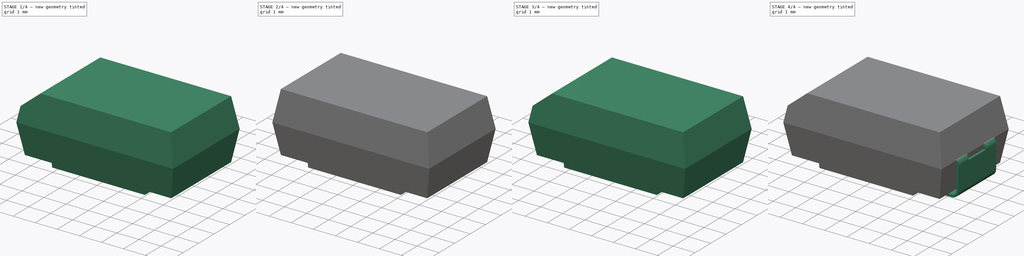
[diagram: build sequence overview — one tinted view per stage of 4, left to right]
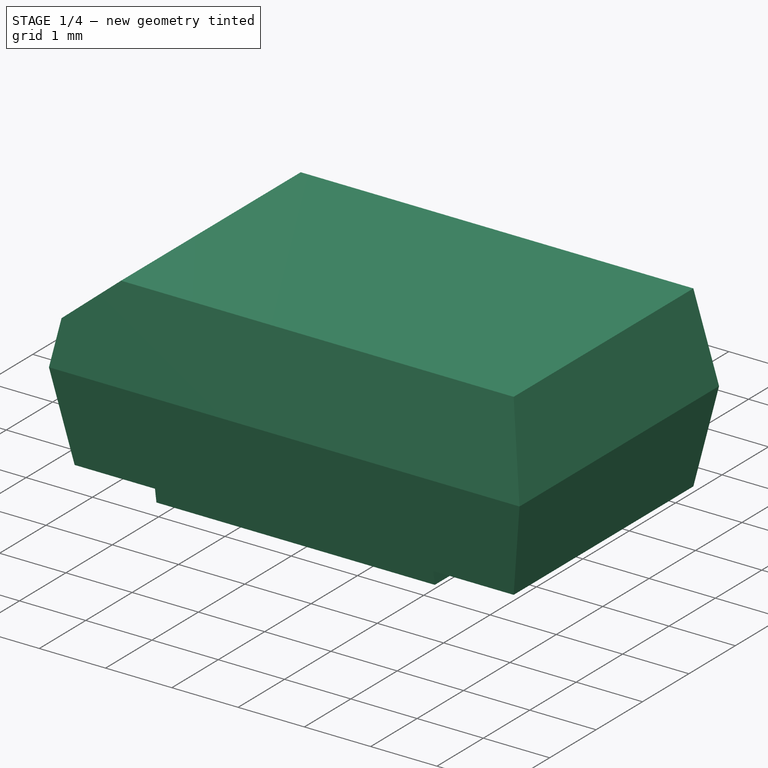
[diagram: stage 1 of 4 — iso view after this stage's code; geometry added in this stage tinted green]
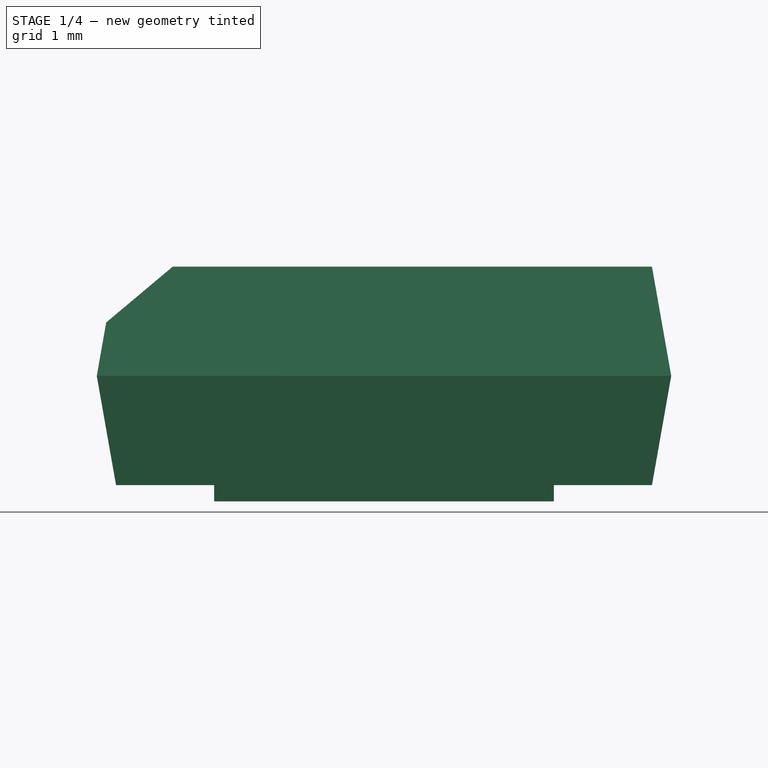
[diagram: stage 1 of 4 — front view after this stage's code; geometry added in this stage tinted green]
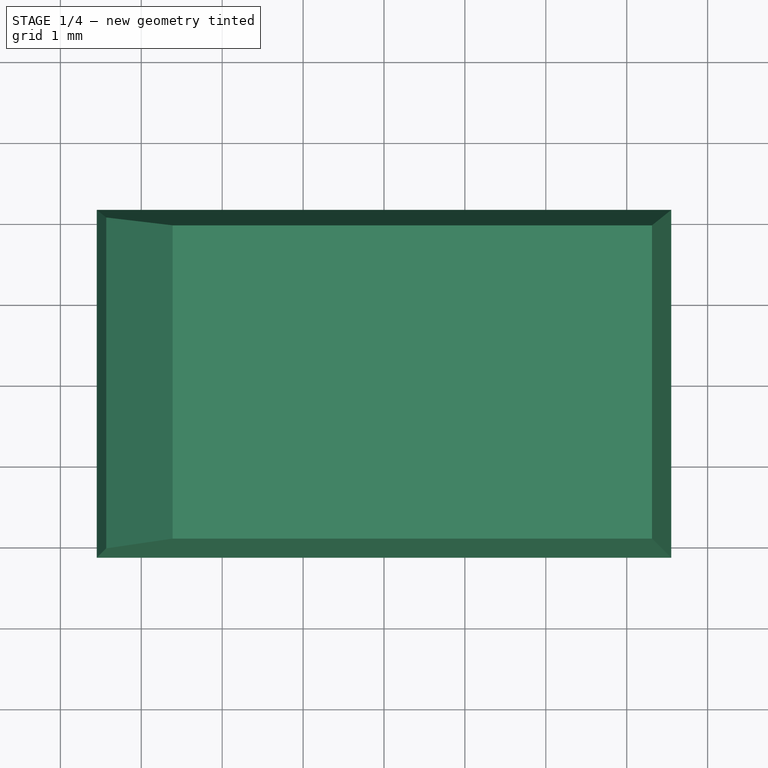
[diagram: stage 1 of 4 — top view after this stage's code; geometry added in this stage tinted green]
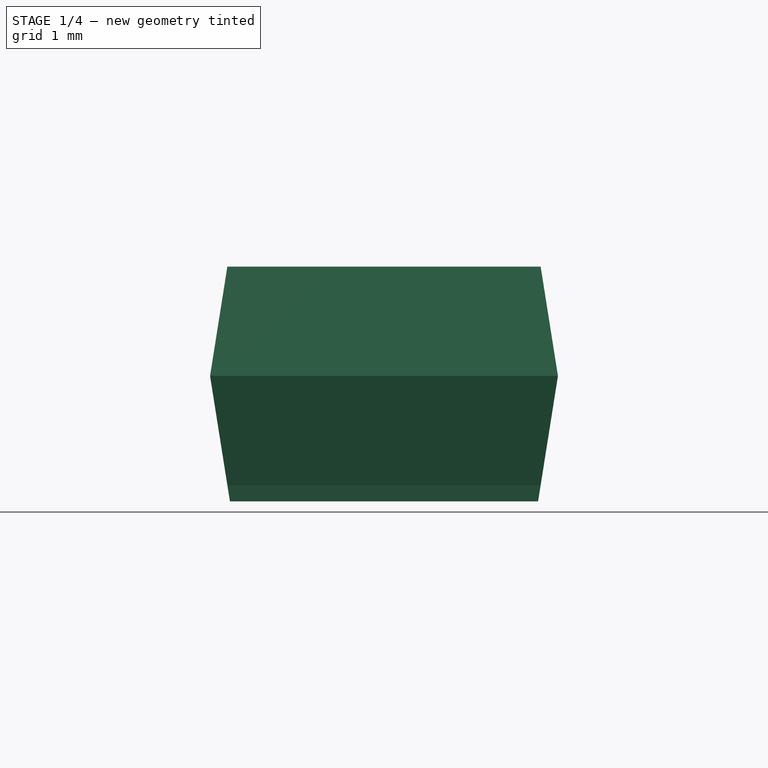
[diagram: stage 1 of 4 — right view after this stage's code; geometry added in this stage tinted green]
FCSTD DOCUMENT  (FreeCAD 0.16R6698 (Git))
Label: Condensador_Tantalio_SizeD
License: All rights reserved
LicenseURL: http://en.wikipedia.org/wiki/All_rights_reserved
objects: Sketcher::SketchObject×13, PartDesign::Pocket×6, PartDesign::Pad×3, App::DocumentObjectGroup×3, Part::Feature×3, Part::Sweep×2, PartDesign::Chamfer×2, Part::Cut×1
note: 39 computed .brp shape members not serialized (recipe doc carries the construction recipe); baked Part::Feature solids carry a one-line shape summary decoded from their .brp

FEATURE [Sketcher::SketchObject] Sketch011
  Placement = pos=(0,0,0) rot=(1,0,0;1.5708rad)
  sketch-geometry (10):
    g0: LineSegment StartX=-3.31196 StartY=2.9 StartZ=0 EndX=3.31196 EndY=2.9 EndZ=0
    g1: LineSegment StartX=3.31196 StartY=2.9 StartZ=0 EndX=3.55 EndY=1.55 EndZ=0
    g2: LineSegment StartX=3.55 StartY=1.55 StartZ=0 EndX=3.31196 EndY=0.2 EndZ=0
    g3: LineSegment StartX=3.31196 StartY=0.2 StartZ=0 EndX=2.1 EndY=0.2 EndZ=0
    g4: LineSegment StartX=2.1 StartY=0.2 StartZ=0 EndX=2.1 EndY=0 EndZ=0
    g5: LineSegment StartX=2.1 StartY=0 StartZ=0 EndX=-2.1 EndY=0 EndZ=0
    g6: LineSegment StartX=-2.1 StartY=0 StartZ=0 EndX=-2.1 EndY=0.2 EndZ=0
    g7: LineSegment StartX=-2.1 StartY=0.2 StartZ=0 EndX=-3.31196 EndY=0.2 EndZ=0
    g8: LineSegment StartX=-3.31196 StartY=0.2 StartZ=0 EndX=-3.55 EndY=1.55 EndZ=0
    g9: LineSegment StartX=-3.55 StartY=1.55 StartZ=0 EndX=-3.31196 EndY=2.9 EndZ=0
  constraints (25):
    c: Coincident(g0,g1)
    c: Coincident(g1,g2)
    c: Coincident(g2,g3)
    c: Coincident(g3,g4)
    c: Coincident(g4,g5)
    c: Coincident(g5,g6)
    c: Coincident(g6,g7)
    c: Coincident(g7,g8)
    c: Coincident(g8,g9)
    c: Coincident(g9,g0)
    c: Symmetric(g0,g0,g-2)
    c: Symmetric(g1,g8,g-2)
    c: Symmetric(g7,g2,g-2)
    c: Symmetric(g6,g3,g-2)
    c: Symmetric(g5,g4,g-2)
    c: Vertical(g6)
    c: Angle(g1,g-2) = 2.96706
    c: Angle(g8,g9) = 2.79253
    c: PointOnObject(g5,g-1)
    c: Horizontal(g7)
    c: DistanceX(g5,g5) = 4.2
    c: DistanceX(g8,g1) = 7.1
    c: DistanceY(g0) = 2.9
    c: DistanceY(g4,g4) = 0.2
    c: Equal(g9,g8)
FEATURE [PartDesign::Pad] Pad002
  Length = 4.3
  Length2 = 100
  Midplane = true
  Placement = pos=(0,0,0) rot=(1,0,0;1.5708rad)
  Sketch = -> Sketch011
  Type = 0
FEATURE [Sketcher::SketchObject] Sketch012
  Placement = pos=(2.1,0,0) rot=(0.707107,0,0.707107;3.14159rad)
  Support = -> Pad002 [Face5]
  sketch-geometry (6):
    g0: LineSegment StartX=2.92209 StartY=2.22985 StartZ=0 EndX=3.3067 EndY=1.87177 EndZ=0
    g1: LineSegment StartX=3.3067 StartY=1.87177 StartZ=0 EndX=1.04584 EndY=2.22985 EndZ=0
    g2: LineSegment StartX=1.04584 StartY=2.22985 StartZ=0 EndX=2.92209 EndY=2.22985 EndZ=0
    g3: LineSegment StartX=3.3067 StartY=-1.87177 StartZ=0 EndX=2.92209 EndY=-2.22985 EndZ=0
    g4: LineSegment StartX=2.92209 StartY=-2.22985 StartZ=0 EndX=1.04584 EndY=-2.22985 EndZ=0
    g5: LineSegment StartX=1.04584 StartY=-2.22985 StartZ=0 EndX=3.3067 EndY=-1.87177 EndZ=0
  constraints (11):
    c: Coincident(g0,g1)
    c: Coincident(g1,g2)
    c: Coincident(g2,g0)
    c: Coincident(g3,g4)
    c: Coincident(g4,g5)
    c: Coincident(g5,g3)
    c: Symmetric(g1,g4,g-1)
    c: Symmetric(g0,g3,g-1)
    c: Symmetric(g0,g3,g-1)
    c: Horizontal(g2)
    c: Angle(g1,g2) = 0.15708
FEATURE [PartDesign::Pocket] Pocket004
  Length = 20
  Midplane = true
  Placement = pos=(0,0,0) rot=(1,0,0;1.5708rad)
  Sketch = -> Sketch012
  Type = 0
FEATURE [Sketcher::SketchObject] Sketch013
  Placement = pos=(2.1,0,0) rot=(0.707107,0,0.707107;3.14159rad)
  Support = -> Pocket004 [Face11]
  sketch-geometry (6):
    g0: LineSegment StartX=2.19375 StartY=2.25196 StartZ=0 EndX=-0.47761 EndY=2.25196 EndZ=0
    g1: LineSegment StartX=-0.47761 StartY=2.25196 StartZ=0 EndX=-0.609797 EndY=1.80792 EndZ=0
    g2: LineSegment StartX=-0.609797 StartY=1.80792 StartZ=0 EndX=2.19375 EndY=2.25196 EndZ=0
    g3: LineSegment StartX=2.19375 StartY=-2.25196 StartZ=0 EndX=-0.47761 EndY=-2.25196 EndZ=0
    g4: LineSegment StartX=-0.47761 StartY=-2.25196 StartZ=0 EndX=-0.609797 EndY=-1.80792 EndZ=0
    g5: LineSegment StartX=-0.609797 StartY=-1.80792 StartZ=0 EndX=2.19375 EndY=-2.25196 EndZ=0
  constraints (11):
    c: Coincident(g0,g1)
    c: Coincident(g1,g2)
    c: Coincident(g2,g0)
    c: Coincident(g3,g4)
    c: Coincident(g4,g5)
    c: Coincident(g5,g3)
    c: Symmetric(g0,g3,g-1)
    c: Symmetric(g1,g4,g-1)
    c: Symmetric(g0,g3,g-1)
    c: Horizontal(g0)
    c: Angle(g0,g2) = 0.15708
FEATURE [PartDesign::Pocket] Pocket005
  Length = 25
  Midplane = true
  Placement = pos=(0,0,0) rot=(1,0,0;1.5708rad)
  Sketch = -> Sketch013
  Type = 0
FEATURE [PartDesign::Chamfer] Chamfer001
  Base = -> Pocket005 [Edge4]
  Placement = pos=(0,0,0) rot=(1,0,0;1.5708rad)
  Size = 0.7
FEATURE [App::DocumentObjectGroup] Grupo  label="paquete"
  Group = -> [Pad,Pocket,Pocket001,Cut,Pad002,Chamfer001,Pocket004,Pocket005]
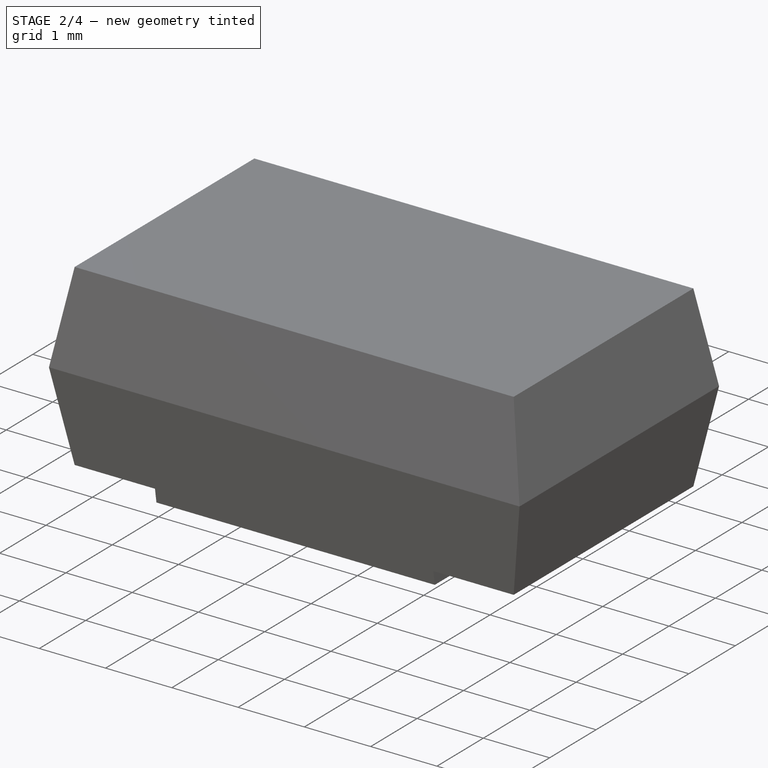
[diagram: stage 2 of 4 — iso view after this stage's code; geometry added in this stage tinted green]
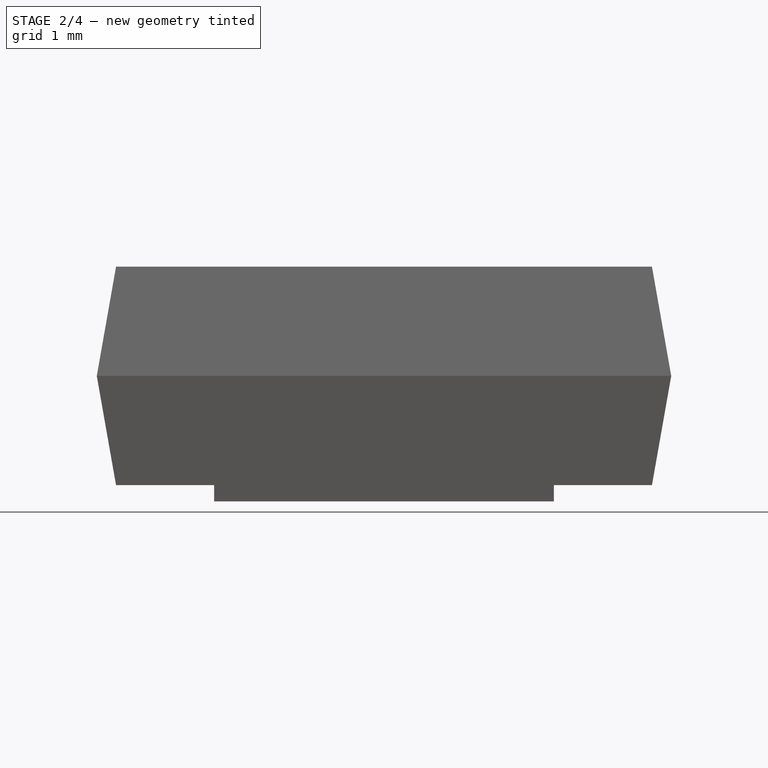
[diagram: stage 2 of 4 — front view after this stage's code; geometry added in this stage tinted green]
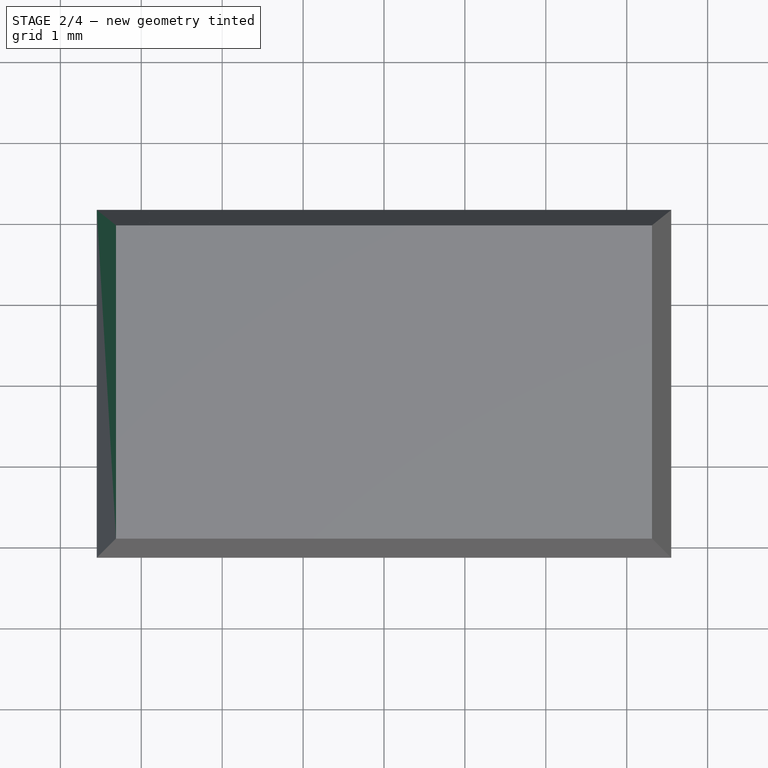
[diagram: stage 2 of 4 — top view after this stage's code; geometry added in this stage tinted green]
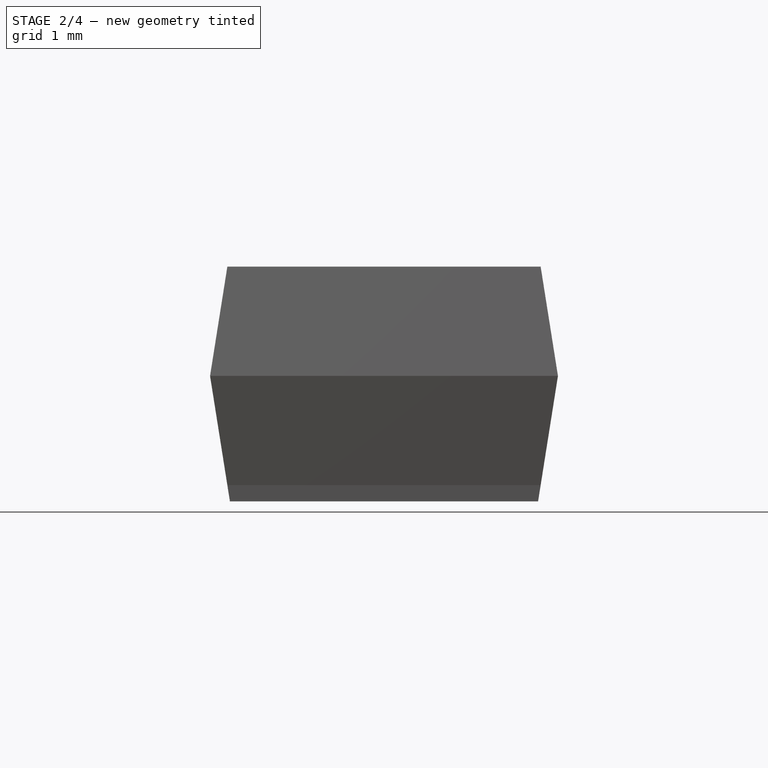
[diagram: stage 2 of 4 — right view after this stage's code; geometry added in this stage tinted green]
FEATURE [Sketcher::SketchObject] Sketch
  Placement = pos=(0,0,0) rot=(1,0,0;1.5708rad)
  sketch-geometry (10):
    g0: LineSegment StartX=-3.31196 StartY=2.9 StartZ=0 EndX=3.31196 EndY=2.9 EndZ=0
    g1: LineSegment StartX=3.31196 StartY=2.9 StartZ=0 EndX=3.55 EndY=1.55 EndZ=0
    g2: LineSegment StartX=3.55 StartY=1.55 StartZ=0 EndX=3.31196 EndY=0.2 EndZ=0
    g3: LineSegment StartX=3.31196 StartY=0.2 StartZ=0 EndX=2.1 EndY=0.2 EndZ=0
    g4: LineSegment StartX=2.1 StartY=0.2 StartZ=0 EndX=2.1 EndY=0 EndZ=0
    g5: LineSegment StartX=2.1 StartY=0 StartZ=0 EndX=-2.1 EndY=0 EndZ=0
    g6: LineSegment StartX=-2.1 StartY=0 StartZ=0 EndX=-2.1 EndY=0.2 EndZ=0
    g7: LineSegment StartX=-2.1 StartY=0.2 StartZ=0 EndX=-3.31196 EndY=0.2 EndZ=0
    g8: LineSegment StartX=-3.31196 StartY=0.2 StartZ=0 EndX=-3.55 EndY=1.55 EndZ=0
    g9: LineSegment StartX=-3.55 StartY=1.55 StartZ=0 EndX=-3.31196 EndY=2.9 EndZ=0
  constraints (25):
    c: Coincident(g0,g1)
    c: Coincident(g1,g2)
    c: Coincident(g2,g3)
    c: Coincident(g3,g4)
    c: Coincident(g4,g5)
    c: Coincident(g5,g6)
    c: Coincident(g6,g7)
    c: Coincident(g7,g8)
    c: Coincident(g8,g9)
    c: Coincident(g9,g0)
    c: Symmetric(g0,g0,g-2)
    c: Symmetric(g1,g8,g-2)
    c: Symmetric(g7,g2,g-2)
    c: Symmetric(g6,g3,g-2)
    c: Symmetric(g5,g4,g-2)
    c: Vertical(g6)
    c: Angle(g1,g-2) = 2.96706
    c: Angle(g8,g9) = 2.79253
    c: PointOnObject(g5,g-1)
    c: Horizontal(g7)
    c: DistanceX(g5,g5) = 4.2
    c: DistanceX(g8,g1) = 7.1
    c: DistanceY(g0) = 2.9
    c: DistanceY(g4,g4) = 0.2
    c: Equal(g9,g8)
FEATURE [PartDesign::Pad] Pad
  Length = 4.3
  Length2 = 100
  Midplane = true
  Placement = pos=(0,0,0) rot=(1,0,0;1.5708rad)
  Sketch = -> Sketch
  Type = 0
FEATURE [Sketcher::SketchObject] Sketch001
  Placement = pos=(2.1,0,0) rot=(0.707107,0,0.707107;3.14159rad)
  Support = -> Pad [Face5]
  sketch-geometry (6):
    g0: LineSegment StartX=2.92209 StartY=2.22985 StartZ=0 EndX=3.3067 EndY=1.87177 EndZ=0
    g1: LineSegment StartX=3.3067 StartY=1.87177 StartZ=0 EndX=1.04584 EndY=2.22985 EndZ=0
    g2: LineSegment StartX=1.04584 StartY=2.22985 StartZ=0 EndX=2.92209 EndY=2.22985 EndZ=0
    g3: LineSegment StartX=3.3067 StartY=-1.87177 StartZ=0 EndX=2.92209 EndY=-2.22985 EndZ=0
    g4: LineSegment StartX=2.92209 StartY=-2.22985 StartZ=0 EndX=1.04584 EndY=-2.22985 EndZ=0
    g5: LineSegment StartX=1.04584 StartY=-2.22985 StartZ=0 EndX=3.3067 EndY=-1.87177 EndZ=0
  constraints (11):
    c: Coincident(g0,g1)
    c: Coincident(g1,g2)
    c: Coincident(g2,g0)
    c: Coincident(g3,g4)
    c: Coincident(g4,g5)
    c: Coincident(g5,g3)
    c: Symmetric(g1,g4,g-1)
    c: Symmetric(g0,g3,g-1)
    c: Symmetric(g0,g3,g-1)
    c: Horizontal(g2)
    c: Angle(g1,g2) = 0.15708
FEATURE [PartDesign::Pocket] Pocket
  Length = 20
  Midplane = true
  Placement = pos=(0,0,0) rot=(1,0,0;1.5708rad)
  Sketch = -> Sketch001
  Type = 0
FEATURE [Sketcher::SketchObject] Sketch002
  Placement = pos=(2.1,0,0) rot=(0.707107,0,0.707107;3.14159rad)
  Support = -> Pocket [Face11]
  sketch-geometry (6):
    g0: LineSegment StartX=2.19375 StartY=2.25196 StartZ=0 EndX=-0.47761 EndY=2.25196 EndZ=0
    g1: LineSegment StartX=-0.47761 StartY=2.25196 StartZ=0 EndX=-0.609797 EndY=1.80792 EndZ=0
    g2: LineSegment StartX=-0.609797 StartY=1.80792 StartZ=0 EndX=2.19375 EndY=2.25196 EndZ=0
    g3: LineSegment StartX=2.19375 StartY=-2.25196 StartZ=0 EndX=-0.47761 EndY=-2.25196 EndZ=0
    g4: LineSegment StartX=-0.47761 StartY=-2.25196 StartZ=0 EndX=-0.609797 EndY=-1.80792 EndZ=0
    g5: LineSegment StartX=-0.609797 StartY=-1.80792 StartZ=0 EndX=2.19375 EndY=-2.25196 EndZ=0
  constraints (11):
    c: Coincident(g0,g1)
    c: Coincident(g1,g2)
    c: Coincident(g2,g0)
    c: Coincident(g3,g4)
    c: Coincident(g4,g5)
    c: Coincident(g5,g3)
    c: Symmetric(g0,g3,g-1)
    c: Symmetric(g1,g4,g-1)
    c: Symmetric(g0,g3,g-1)
    c: Horizontal(g0)
    c: Angle(g0,g2) = 0.15708
FEATURE [PartDesign::Pocket] Pocket001
  Length = 25
  Midplane = true
  Placement = pos=(0,0,0) rot=(1,0,0;1.5708rad)
  Sketch = -> Sketch002
  Type = 0
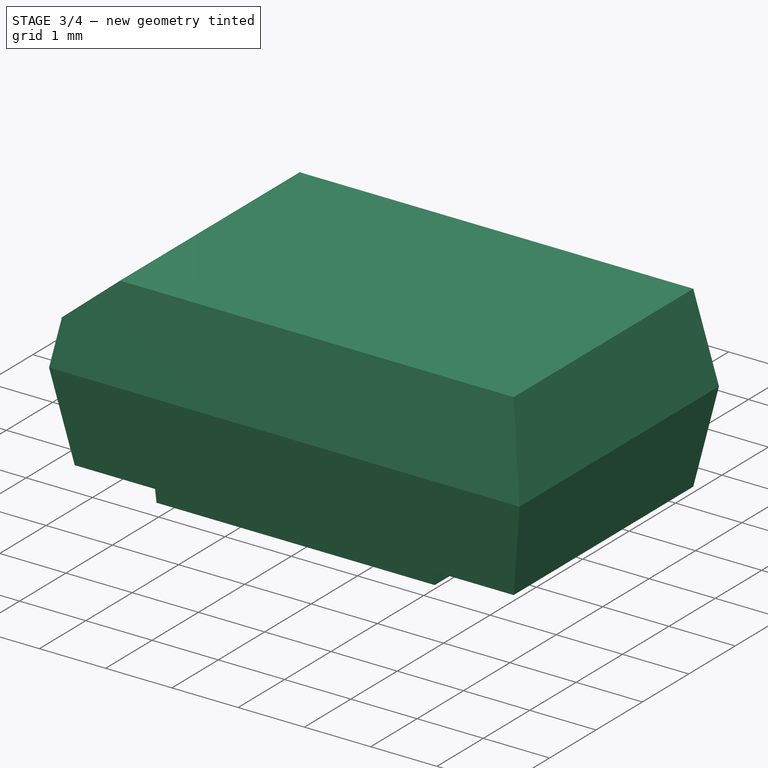
[diagram: stage 3 of 4 — iso view after this stage's code; geometry added in this stage tinted green]
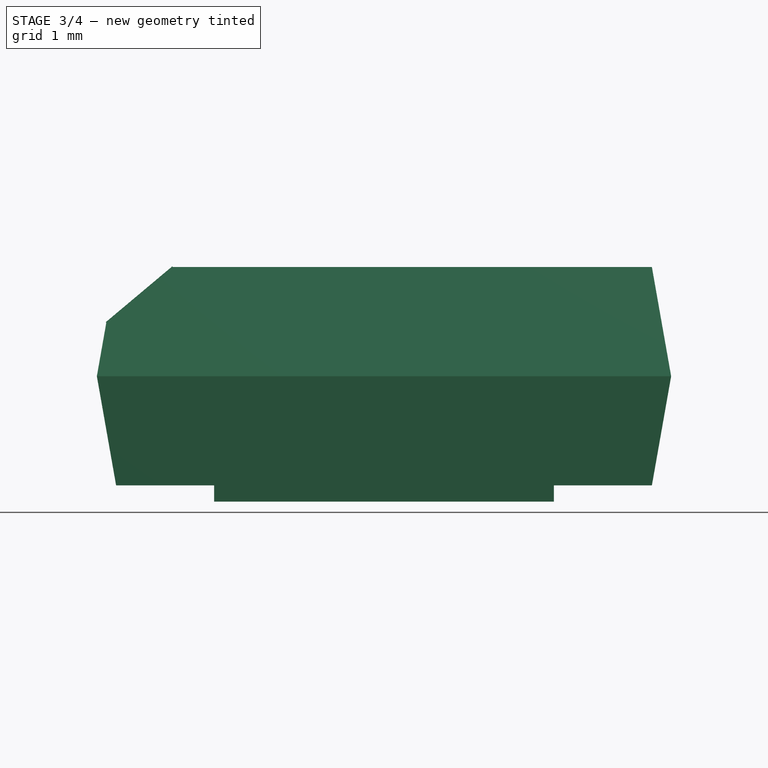
[diagram: stage 3 of 4 — front view after this stage's code; geometry added in this stage tinted green]
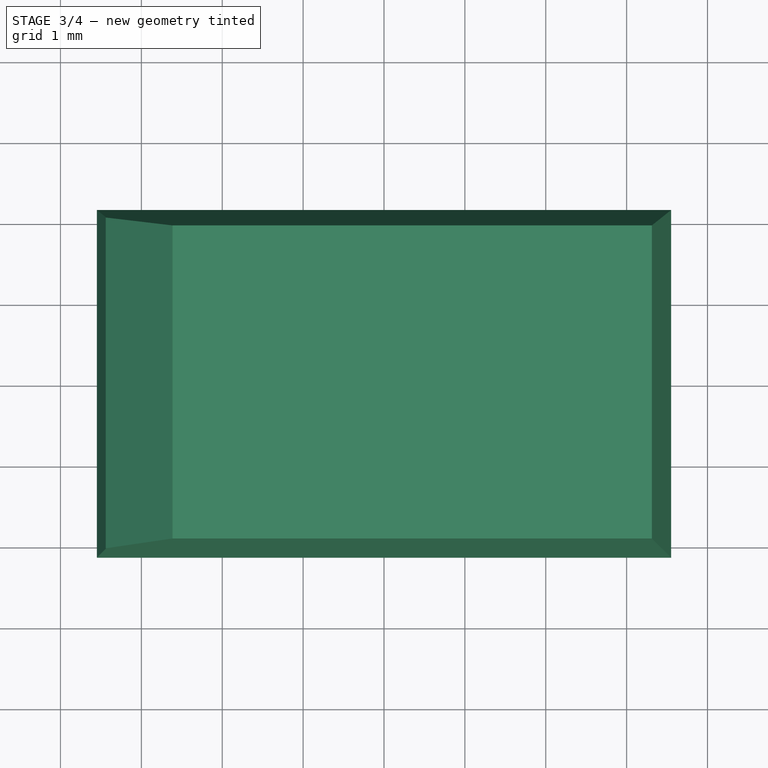
[diagram: stage 3 of 4 — top view after this stage's code; geometry added in this stage tinted green]
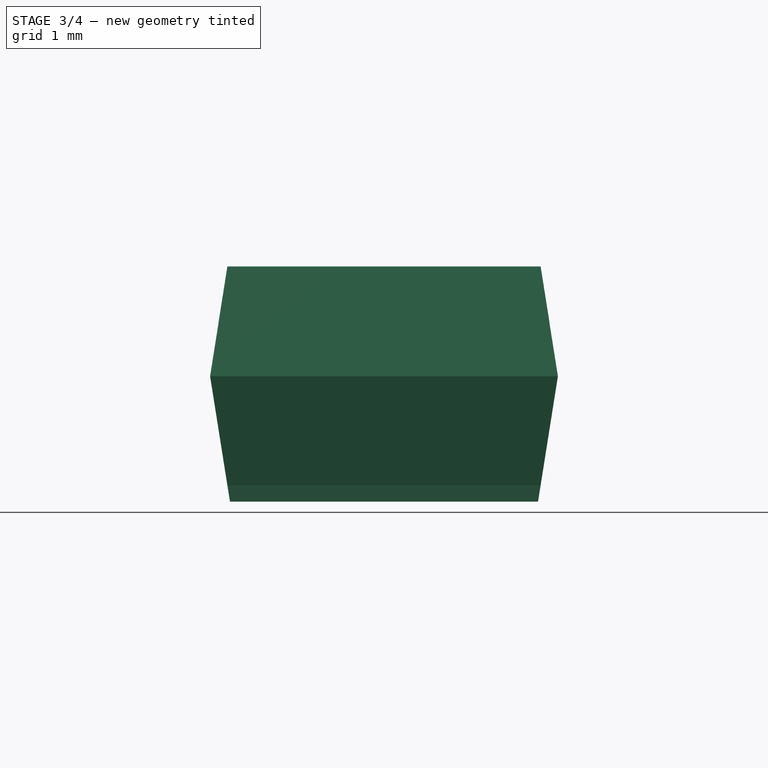
[diagram: stage 3 of 4 — right view after this stage's code; geometry added in this stage tinted green]
FEATURE [App::DocumentObjectGroup] Grupo001  label="pines"
  Group = -> [Sketch005,Sweep,Sketch007,Sweep001,Pocket002,Pocket003]
FEATURE [Part::Feature] Shape  label="FrontSilk"
  shape: bbox 11.21 x 5.652 x 2e-07 mm, 5 faces, 0 solids (baked)
FEATURE [Part::Feature] Shape001  label="TopPads"
  shape: bbox 9.7 x 2.7 x 0.01 mm, 12 faces, 2 solids (baked)
FEATURE [Part::Feature] Shape002001  label="Pcb_solid"
  shape: bbox 18.37 x 9.043 x 1.58 mm, 6 faces (baked)
FEATURE [App::DocumentObjectGroup] TantalC_SizeD_EIA_7343_Wave_fp
  Group = -> [Shape,Shape001,Shape002001]
FEATURE [PartDesign::Chamfer] Chamfer
  Base = -> Pocket001 [Edge4]
  Placement = pos=(0,0,0) rot=(1,0,0;1.5708rad)
  Size = 0.7
FEATURE [Sketcher::SketchObject] Sketch010
  ExternalGeometry = -> [Chamfer]
  Placement = pos=(-2.50717,0,2.98793) rot=(-0.34202,0,0.939693;3.14159rad)
  Support = -> Chamfer [Face3]
  sketch-geometry (4):
    g0: LineSegment StartX=0.136792 StartY=1.93618 StartZ=0 EndX=1.20925 EndY=2.04537 EndZ=0
    g1: LineSegment StartX=1.20925 StartY=2.04537 StartZ=0 EndX=1.20925 EndY=-2.04537 EndZ=0
    g2: LineSegment StartX=1.20925 StartY=-2.04537 StartZ=0 EndX=0.136792 EndY=-1.93618 EndZ=0
    g3: LineSegment StartX=0.136792 StartY=-1.93618 StartZ=0 EndX=0.136792 EndY=1.93618 EndZ=0
  constraints (8):
    c: Coincident(g0,g1)
    c: Coincident(g1,g2)
    c: Coincident(g2,g3)
    c: Coincident(g3,g0)
    c: Symmetric(g0,g2,g-1)
    c: Symmetric(g0,g1,g-1)
    c: Coincident(g0,g-3)
    c: Coincident(g0,g-3)
FEATURE [PartDesign::Pad] Pad001
  Length = 0.01
  Length2 = 100
  Placement = pos=(0,0,0) rot=(1,0,0;1.5708rad)
  Sketch = -> Sketch010
  Type = 0
FEATURE [Part::Cut] Cut
  Base = -> Pad001
  Tool = -> Chamfer
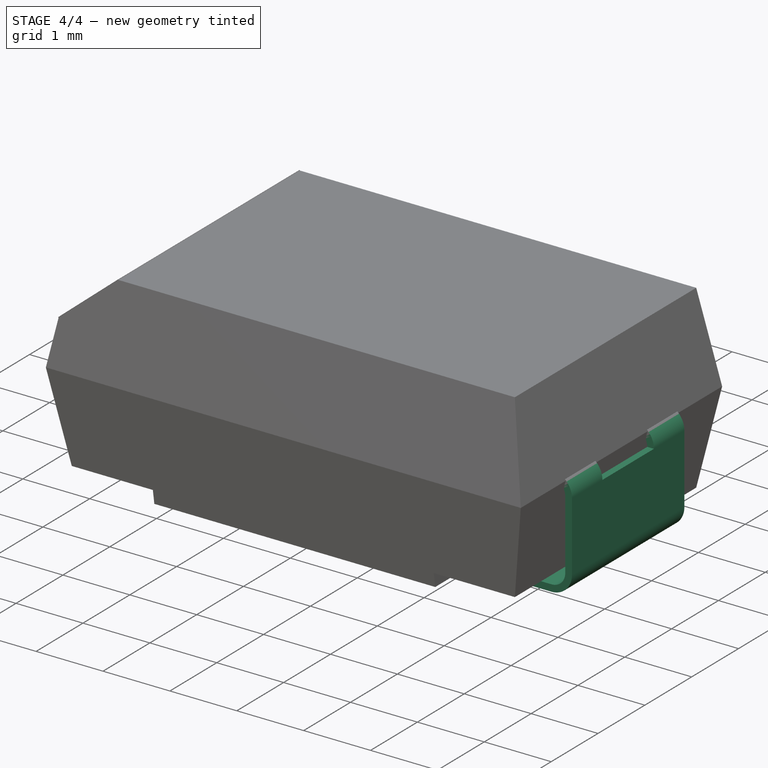
[diagram: stage 4 of 4 — iso view after this stage's code; geometry added in this stage tinted green]
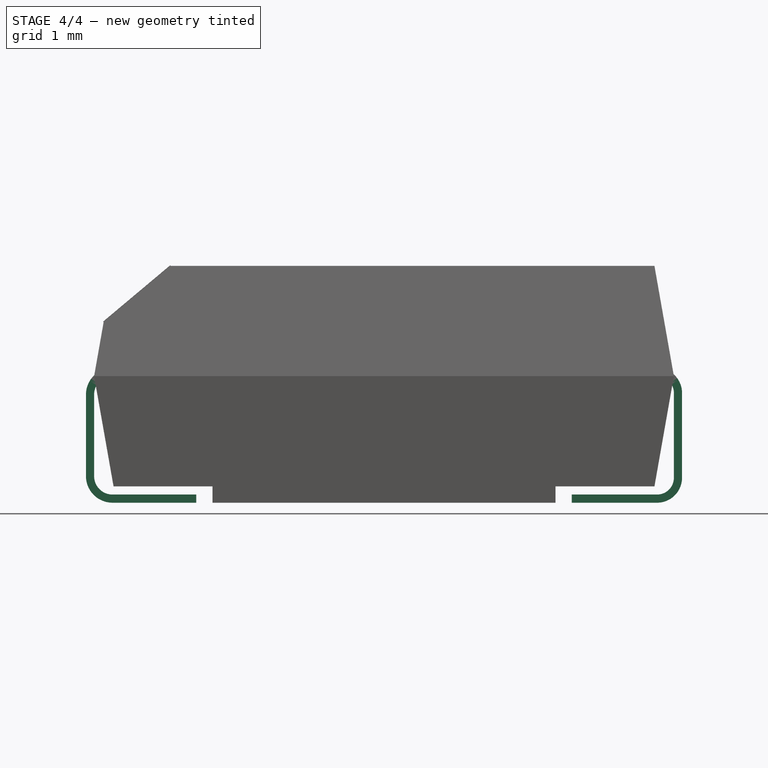
[diagram: stage 4 of 4 — front view after this stage's code; geometry added in this stage tinted green]
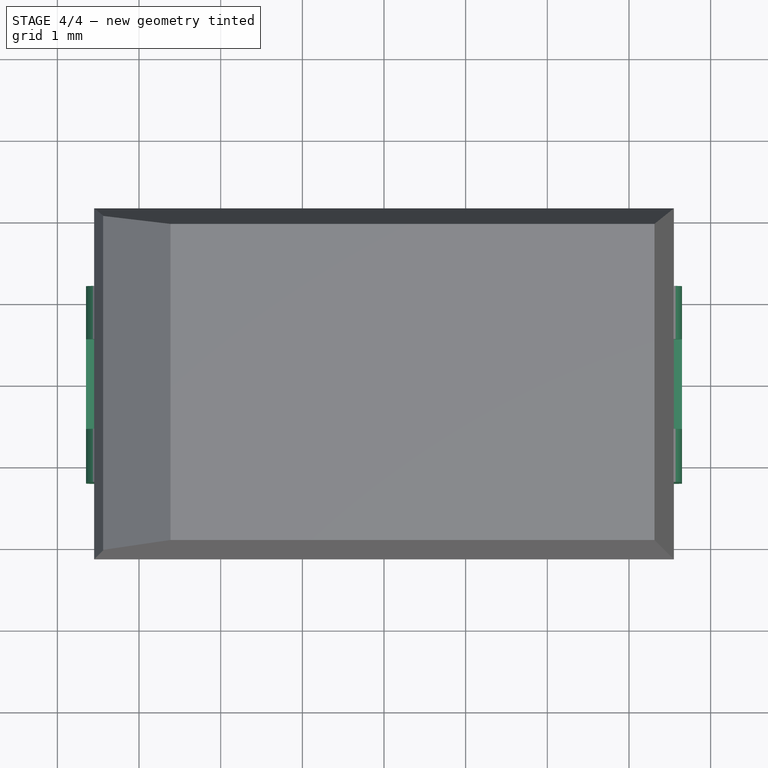
[diagram: stage 4 of 4 — top view after this stage's code; geometry added in this stage tinted green]
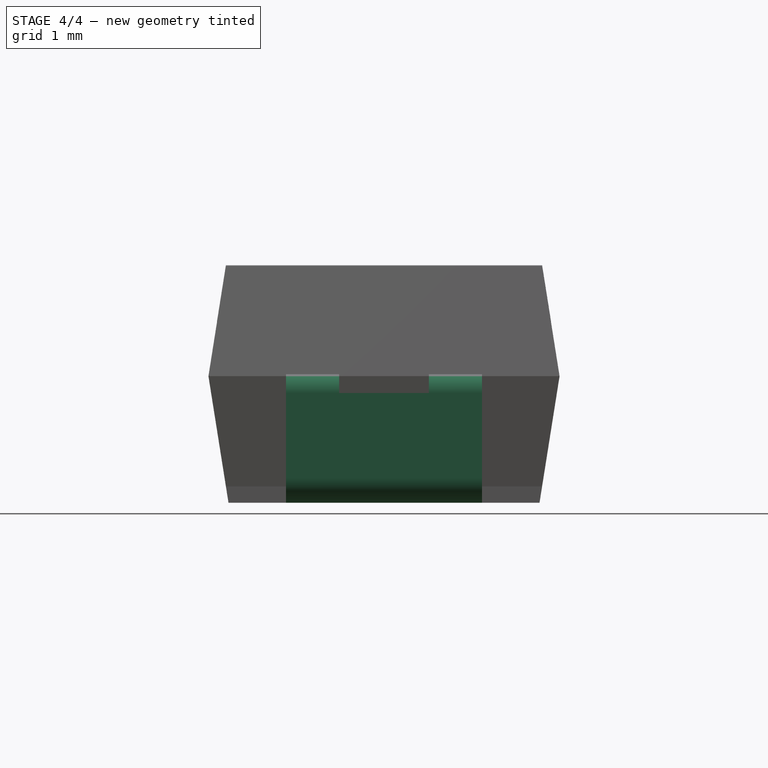
[diagram: stage 4 of 4 — right view after this stage's code; geometry added in this stage tinted green]
FEATURE [Sketcher::SketchObject] Sketch004  label="seccion"
  Placement = pos=(0,0,0) rot=(0.57735,0.57735,0.57735;2.0944rad)
  sketch-geometry (4):
    g0: LineSegment StartX=-1.2 StartY=0.1 StartZ=0 EndX=1.2 EndY=0.1 EndZ=0
    g1: LineSegment StartX=1.2 StartY=0.1 StartZ=0 EndX=1.2 EndY=0 EndZ=0
    g2: LineSegment StartX=1.2 StartY=0 StartZ=0 EndX=-1.2 EndY=0 EndZ=0
    g3: LineSegment StartX=-1.2 StartY=0 StartZ=0 EndX=-1.2 EndY=0.1 EndZ=0
  constraints (12):
    c: Coincident(g0,g1)
    c: Coincident(g1,g2)
    c: Coincident(g2,g3)
    c: Coincident(g3,g0)
    c: Horizontal(g0)
    c: Horizontal(g2)
    c: Vertical(g1)
    c: Vertical(g3)
    c: PointOnObject(g2,g-1)
    c: DistanceX(g0,g0) = 2.4
    c: DistanceY(g1,g1) = 0.1
    c: Symmetric(g0,g0,g-2)
FEATURE [Sketcher::SketchObject] Sketch005  label="barrido"
  Placement = pos=(0,0,0) rot=(1,0,0;1.5708rad)
  sketch-geometry (5):
    g0: LineSegment StartX=0 StartY=0.05 StartZ=0 EndX=1.04394 EndY=0.05 EndZ=0
    g1: LineSegment StartX=1.3 StartY=0.306065 StartZ=0 EndX=1.3 EndY=1.34394 EndZ=0
    g2: LineSegment StartX=0.856698 StartY=1.6 StartZ=0 EndX=1.04394 EndY=1.6 EndZ=0
    g3: ArcOfCircle CenterX=1.04394 CenterY=0.306065 CenterZ=0 NormalX=0 NormalY=0 NormalZ=1 Radius=0.256065 StartAngle=4.71239 EndAngle=6.28319
    g4: ArcOfCircle CenterX=1.04394 CenterY=1.34394 CenterZ=0 NormalX=0 NormalY=0 NormalZ=1 Radius=0.256065 StartAngle=0 EndAngle=1.5708
  constraints (12):
    c: Tangent(g0,g3) = -1.5708
    c: Tangent(g1,g3) = -1.5708
    c: Tangent(g2,g4) = 1.5708
    c: Tangent(g1,g4) = -1.5708
    c: PointOnObject(g0,g-2)
    c: DistanceY(g0) = 0.05
    c: DistanceX(g1) = 1.3
    c: Horizontal(g2)
    c: Horizontal(g0)
    c: DistanceY(g2) = 1.6
    c: Vertical(g1)
    c: Equal(g3,g4)
FEATURE [Part::Sweep] Sweep
  Frenet = false
  Placement = pos=(2.3,0,0) rot=(0,0,1;0rad)
  Sections = -> [Sketch004]
  Solid = true
  Spine = -> Sketch005 [Edge2,Edge1,Edge3,Edge4,Edge5]
  Transition = 1
FEATURE [Sketcher::SketchObject] Sketch006  label="seccion001"
  Placement = pos=(0,0,0) rot=(0.57735,0.57735,0.57735;2.0944rad)
  sketch-geometry (4):
    g0: LineSegment StartX=-1.2 StartY=0.1 StartZ=0 EndX=1.2 EndY=0.1 EndZ=0
    g1: LineSegment StartX=1.2 StartY=0.1 StartZ=0 EndX=1.2 EndY=0 EndZ=0
    g2: LineSegment StartX=1.2 StartY=0 StartZ=0 EndX=-1.2 EndY=0 EndZ=0
    g3: LineSegment StartX=-1.2 StartY=0 StartZ=0 EndX=-1.2 EndY=0.1 EndZ=0
  constraints (12):
    c: Coincident(g0,g1)
    c: Coincident(g1,g2)
    c: Coincident(g2,g3)
    c: Coincident(g3,g0)
    c: Horizontal(g0)
    c: Horizontal(g2)
    c: Vertical(g1)
    c: Vertical(g3)
    c: PointOnObject(g2,g-1)
    c: DistanceX(g0,g0) = 2.4
    c: DistanceY(g1,g1) = 0.1
    c: Symmetric(g0,g0,g-2)
FEATURE [Sketcher::SketchObject] Sketch007  label="barrido001"
  Placement = pos=(0,0,0) rot=(1,0,0;1.5708rad)
  sketch-geometry (5):
    g0: LineSegment StartX=0 StartY=0.05 StartZ=0 EndX=1.0245 EndY=0.05 EndZ=0
    g1: LineSegment StartX=1.3 StartY=0.3255 StartZ=0 EndX=1.3 EndY=1.3245 EndZ=0
    g2: LineSegment StartX=0.856698 StartY=1.6 StartZ=0 EndX=1.0245 EndY=1.6 EndZ=0
    g3: ArcOfCircle CenterX=1.0245 CenterY=0.3255 CenterZ=0 NormalX=0 NormalY=0 NormalZ=1 Radius=0.2755 StartAngle=4.71239 EndAngle=6.28319
    g4: ArcOfCircle CenterX=1.0245 CenterY=1.3245 CenterZ=0 NormalX=0 NormalY=0 NormalZ=1 Radius=0.2755 StartAngle=0 EndAngle=1.5708
  constraints (12):
    c: Tangent(g0,g3) = -1.5708
    c: Tangent(g1,g3) = -1.5708
    c: Tangent(g2,g4) = 1.5708
    c: Tangent(g1,g4) = -1.5708
    c: PointOnObject(g0,g-2)
    c: DistanceY(g0) = 0.05
    c: DistanceX(g1) = 1.3
    c: Horizontal(g2)
    c: Horizontal(g0)
    c: DistanceY(g2) = 1.6
    c: Vertical(g1)
    c: Equal(g3,g4)
FEATURE [Part::Sweep] Sweep001
  Frenet = false
  Placement = pos=(-2.3,0,0) rot=(0,0,1;3.14159rad)
  Sections = -> [Sketch006]
  Solid = true
  Spine = -> Sketch007 [Edge2,Edge1,Edge3,Edge4,Edge5]
  Transition = 1
FEATURE [Sketcher::SketchObject] Sketch008
  ExternalGeometry = -> [Sweep]
  Placement = pos=(3.65,0,0) rot=(0.57735,0.57735,0.57735;2.0944rad)
  Support = -> Sweep [Face11]
  sketch-geometry (4):
    g0: LineSegment StartX=-0.55 StartY=1.65 StartZ=0 EndX=0.55 EndY=1.65 EndZ=0
    g1: LineSegment StartX=0.55 StartY=1.65 StartZ=0 EndX=0.55 EndY=1.34394 EndZ=0
    g2: LineSegment StartX=0.55 StartY=1.34394 StartZ=0 EndX=-0.55 EndY=1.34394 EndZ=0
    g3: LineSegment StartX=-0.55 StartY=1.34394 StartZ=0 EndX=-0.55 EndY=1.65 EndZ=0
  constraints (12):
    c: Coincident(g0,g1)
    c: Coincident(g1,g2)
    c: Coincident(g2,g3)
    c: Coincident(g3,g0)
    c: Horizontal(g0)
    c: Horizontal(g2)
    c: Vertical(g1)
    c: Vertical(g3)
    c: Symmetric(g0,g0,g-2)
    c: PointOnObject(g0,g-3)
    c: PointOnObject(g2,g-4)
    c: DistanceX(g0) = -0.55
FEATURE [PartDesign::Pocket] Pocket002
  Length = 5
  Placement = pos=(2.3,0,0) rot=(0,0,1;0rad)
  Sketch = -> Sketch008
  Type = 0
FEATURE [Sketcher::SketchObject] Sketch009
  ExternalGeometry = -> [Sweep001]
  Placement = pos=(-3.65,0,0) rot=(0.57735,-0.57735,-0.57735;2.0944rad)
  Support = -> Sweep001 [Face11]
  sketch-geometry (4):
    g0: LineSegment StartX=-0.55 StartY=1.65 StartZ=0 EndX=0.55 EndY=1.65 EndZ=0
    g1: LineSegment StartX=0.55 StartY=1.65 StartZ=0 EndX=0.55 EndY=1.3245 EndZ=0
    g2: LineSegment StartX=0.55 StartY=1.3245 StartZ=0 EndX=-0.55 EndY=1.3245 EndZ=0
    g3: LineSegment StartX=-0.55 StartY=1.3245 StartZ=0 EndX=-0.55 EndY=1.65 EndZ=0
  constraints (12):
    c: Coincident(g0,g1)
    c: Coincident(g1,g2)
    c: Coincident(g2,g3)
    c: Coincident(g3,g0)
    c: Horizontal(g0)
    c: Horizontal(g2)
    c: Vertical(g1)
    c: Vertical(g3)
    c: Symmetric(g0,g0,g-2)
    c: DistanceX(g0) = -0.55
    c: PointOnObject(g0,g-3)
    c: PointOnObject(g2,g-4)
FEATURE [PartDesign::Pocket] Pocket003
  Length = 5
  Placement = pos=(-2.3,0,0) rot=(0,0,1;3.14159rad)
  Sketch = -> Sketch009
  Type = 0
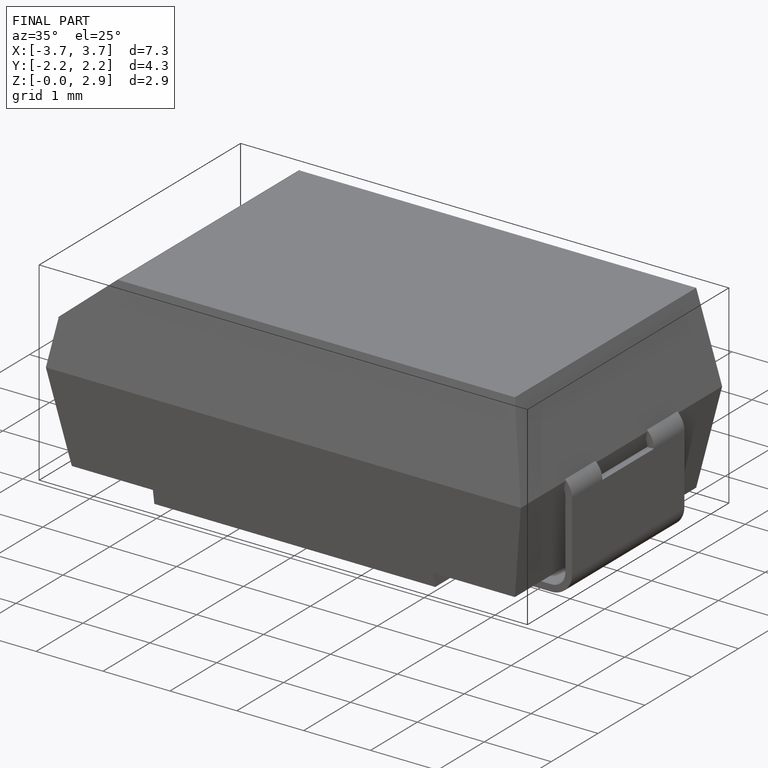
[diagram: finished part — iso view with bounding-box wireframe]
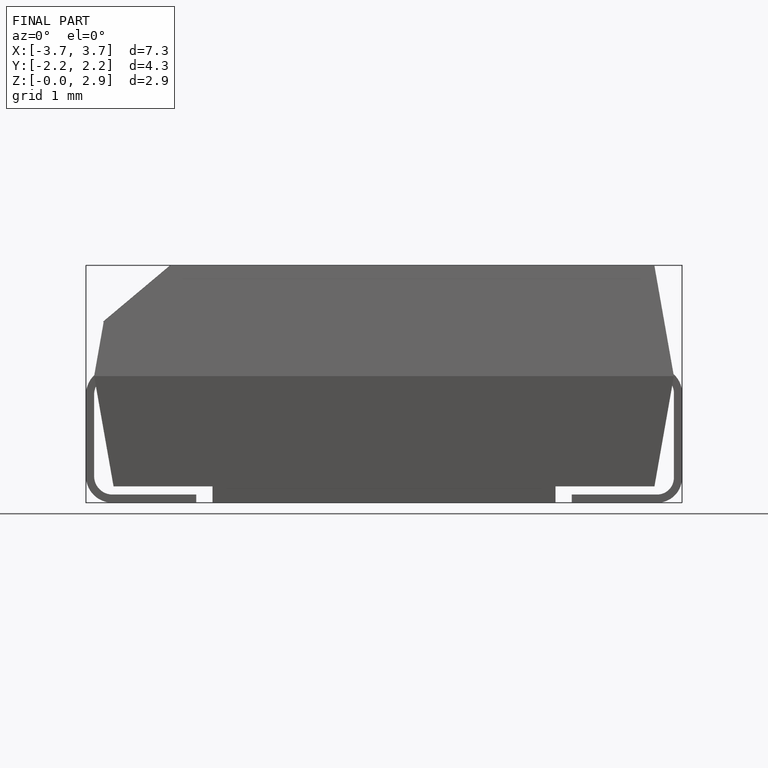
[diagram: finished part — front view with bounding-box wireframe]
